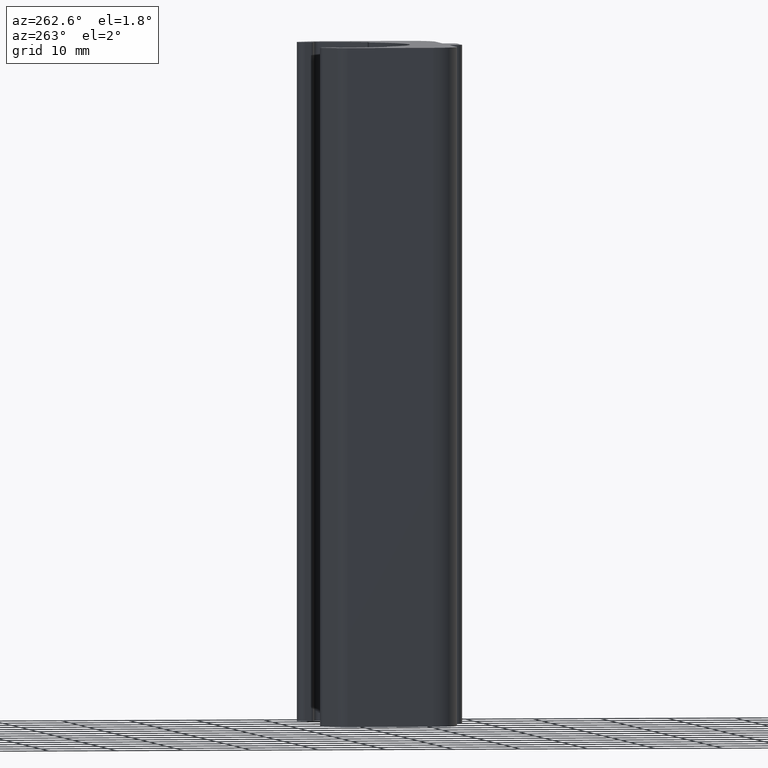
[diagram: clean part render]
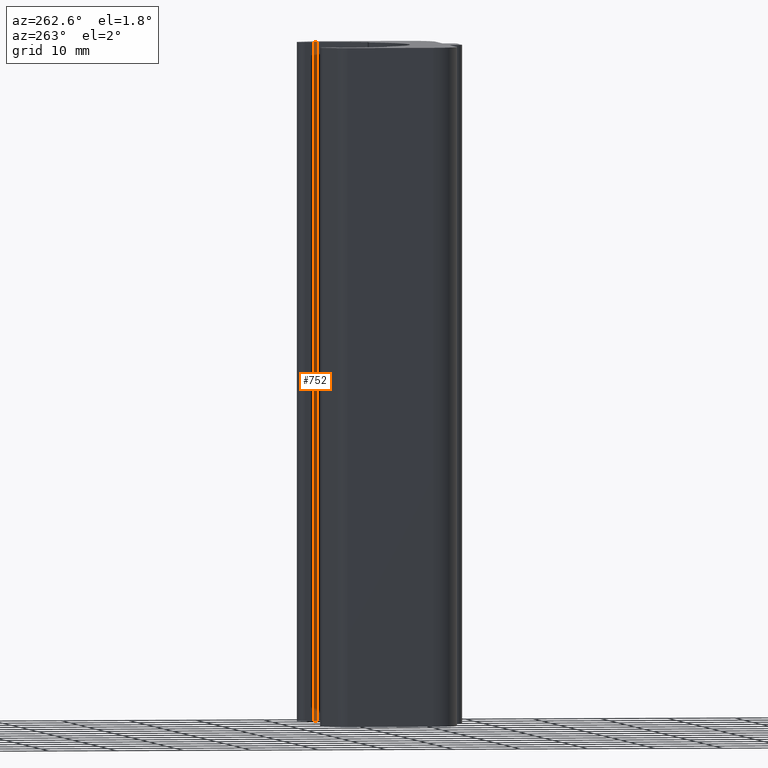
[diagram: same view with one face highlighted and labeled with its STEP entity id]
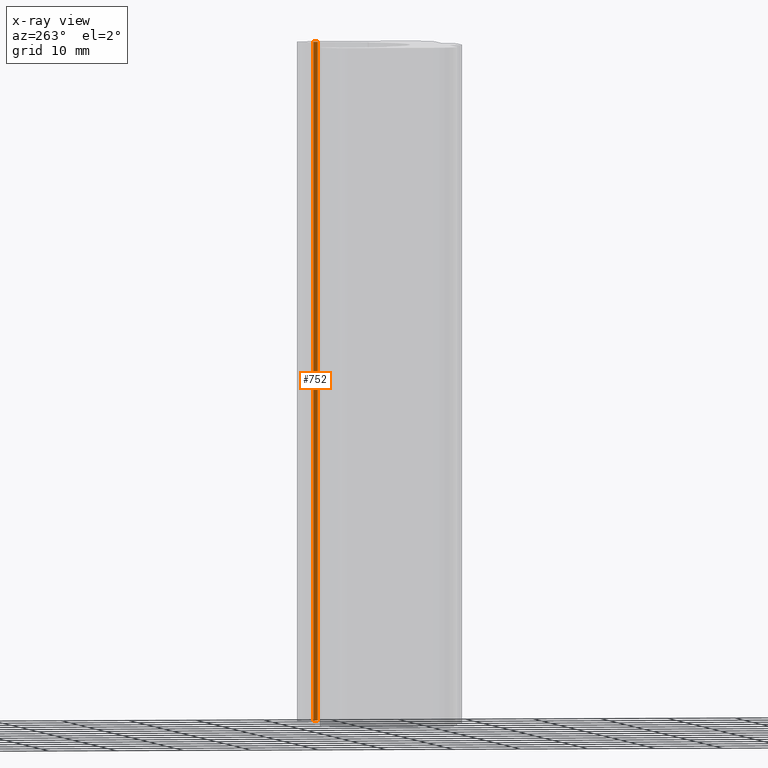
[diagram: x-ray of the same camera — body ghosted, the highlighted face saturated]
A machine part, auxiliary view. The second image highlights one B-rep face of the part: STEP entity #752.
The next image is the same camera in x-ray: the body ghosted, the highlighted face saturated — about 0% of this face is hidden behind the body in this view.
In plain terms, the highlighted cylindrical surface (edge-blend (fillet) strip) has radius 0.7 mm, axis along (0, 0, 1).
Its self-contained STEP definition (entity closure, byte-faithful):
#25=CYLINDRICAL_SURFACE('',#826,0.7);
#52=FACE_OUTER_BOUND('',#92,.T.);
#92=EDGE_LOOP('',(#585,#586,#587,#588));
#127=CIRCLE('',#790,0.7);
#149=CIRCLE('',#827,0.7);
#195=LINE('',#1238,#265);
#196=LINE('',#1242,#266);
#265=VECTOR('',#993,100.);
#266=VECTOR('',#998,100.);
#316=VERTEX_POINT('',#1134);
#317=VERTEX_POINT('',#1136);
#353=VERTEX_POINT('',#1236);
#354=VERTEX_POINT('',#1240);
#392=EDGE_CURVE('',#316,#317,#127,.T.);
#443=EDGE_CURVE('',#316,#353,#195,.T.);
#444=EDGE_CURVE('',#354,#353,#149,.T.);
#445=EDGE_CURVE('',#317,#354,#196,.T.);
#585=ORIENTED_EDGE('',*,*,#443,.T.);
#586=ORIENTED_EDGE('',*,*,#444,.F.);
#587=ORIENTED_EDGE('',*,*,#445,.F.);
#588=ORIENTED_EDGE('',*,*,#392,.F.);
#752=ADVANCED_FACE('',(#52),#25,.F.);
#790=AXIS2_PLACEMENT_3D('',#1137,#892,#893);
#826=AXIS2_PLACEMENT_3D('',#1239,#994,#995);
#827=AXIS2_PLACEMENT_3D('',#1241,#996,#997);
#892=DIRECTION('center_axis',(0.,0.,1.));
#893=DIRECTION('ref_axis',(-0.998526647324319,0.0542635658914468,0.));
#993=DIRECTION('',(0.,0.,1.));
#994=DIRECTION('center_axis',(0.,0.,1.));
#995=DIRECTION('ref_axis',(-0.998526647324319,0.0542635658914468,0.));
#996=DIRECTION('center_axis',(0.,0.,-1.));
#997=DIRECTION('ref_axis',(-0.998526647324319,0.0542635658914468,0.));
#998=DIRECTION('',(0.,0.,1.));
#1134=CARTESIAN_POINT('',(13.5799624036107,-0.737984496123656,-50.));
#1136=CARTESIAN_POINT('',(12.8809937504837,0.,-50.));
#1137=CARTESIAN_POINT('Origin',(12.8809937504837,-0.699999999999643,-50.));
#1236=CARTESIAN_POINT('',(13.5799624036107,-0.737984496123656,50.));
#1238=CARTESIAN_POINT('',(13.5799624036107,-0.737984496123656,0.));
#1239=CARTESIAN_POINT('Origin',(12.8809937504837,-0.699999999999643,0.));
#1240=CARTESIAN_POINT('',(12.8809937504837,0.,50.));
#1241=CARTESIAN_POINT('Origin',(12.8809937504837,-0.699999999999643,50.));
#1242=CARTESIAN_POINT('',(12.8809937504837,0.,0.));